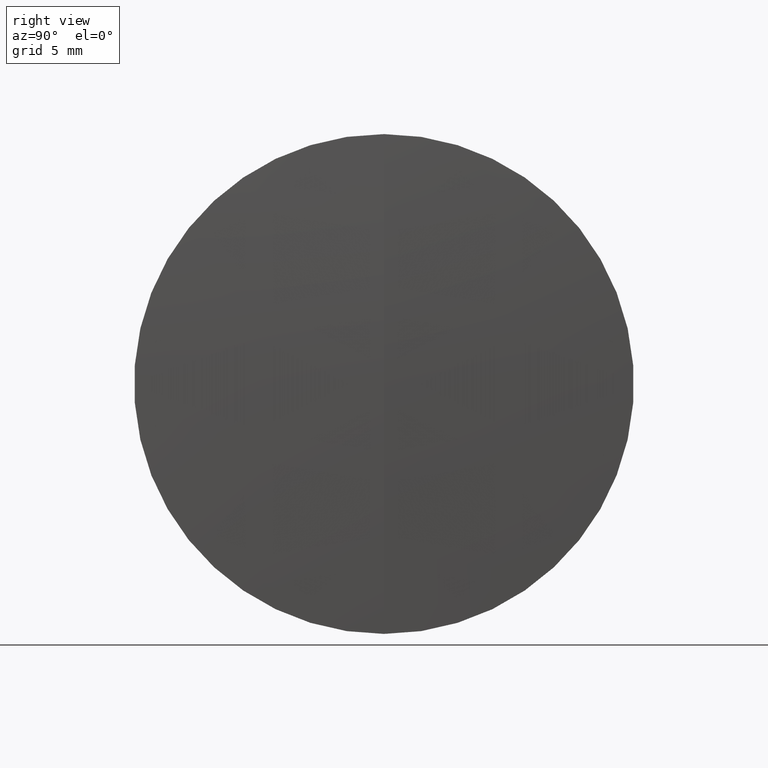
[diagram: clean part render]
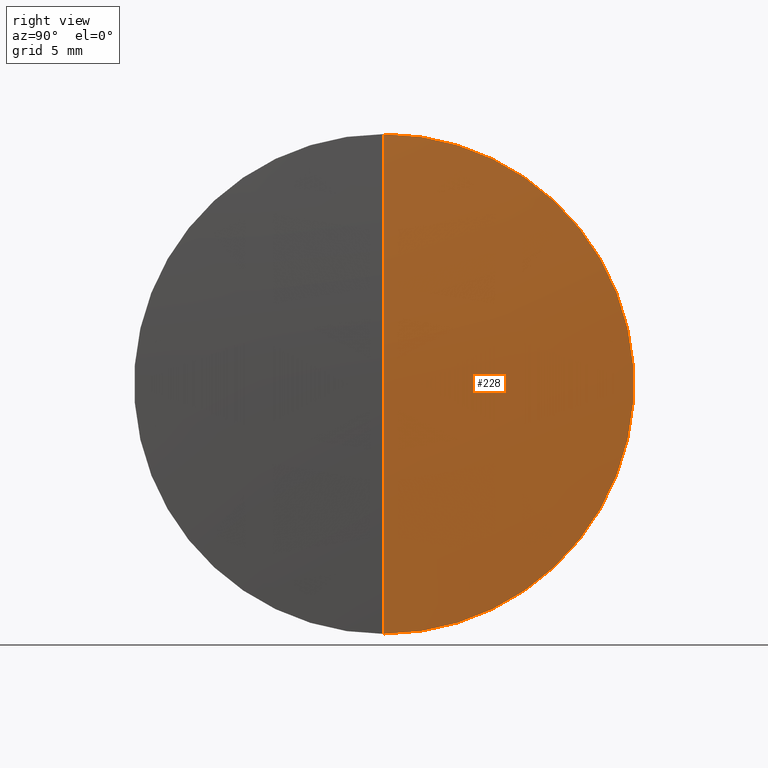
[diagram: same view with one face highlighted and labeled with its STEP entity id]
A machine part, right view. The second image highlights one B-rep face of the part: STEP entity #228.
In plain terms, the highlighted spherical surface has radius 272.9 mm.
Its self-contained STEP definition (entity closure, byte-faithful):
#15 = DIRECTION ( 'NONE',  ( 0.0000000000000000000, -1.000000000000000000, 0.0000000000000000000 ) ) ;
#20 = VERTEX_POINT ( 'NONE', #268 ) ;
#42 = DIRECTION ( 'NONE',  ( 0.0000000000000000000, 0.0000000000000000000, -1.000000000000000000 ) ) ;
#52 = DIRECTION ( 'NONE',  ( -0.0000000000000000000, 1.000000000000000000, 1.224646799147353200E-016 ) ) ;
#53 = VERTEX_POINT ( 'NONE', #66 ) ;
#66 = CARTESIAN_POINT ( 'NONE',  ( 347.1069652250823800, 0.0000000000000000000, 1.671030557436562800E-014 ) ) ;
#88 = CARTESIAN_POINT ( 'NONE',  ( 74.20696522508252700, 0.0000000000000000000, 0.0000000000000000000 ) ) ;
#97 = CARTESIAN_POINT ( 'NONE',  ( 74.20696522508252700, 0.0000000000000000000, 0.0000000000000000000 ) ) ;
#98 = CIRCLE ( 'NONE', #269, 14.99999999999997200 ) ;
#109 = SPHERICAL_SURFACE ( 'NONE', #114, 272.8999999999998600 ) ;
#111 = DIRECTION ( 'NONE',  ( -1.000000000000000000, -0.0000000000000000000, -0.0000000000000000000 ) ) ;
#114 = AXIS2_PLACEMENT_3D ( 'NONE', #88, #248, #217 ) ;
#116 = EDGE_CURVE ( 'NONE', #53, #148, #168, .T. ) ;
#130 = CARTESIAN_POINT ( 'NONE',  ( 346.6944144773369800, 0.0000000000000000000, 14.99999999999997200 ) ) ;
#134 = AXIS2_PLACEMENT_3D ( 'NONE', #245, #52, #216 ) ;
#142 = EDGE_LOOP ( 'NONE', ( #209, #250, #225 ) ) ;
#148 = VERTEX_POINT ( 'NONE', #130 ) ;
#168 = CIRCLE ( 'NONE', #325, 272.8999999999998600 ) ;
#175 = CIRCLE ( 'NONE', #134, 272.8999999999998600 ) ;
#209 = ORIENTED_EDGE ( 'NONE', *, *, #116, .F. ) ;
#210 = EDGE_CURVE ( 'NONE', #148, #20, #98, .T. ) ;
#216 = DIRECTION ( 'NONE',  ( 0.0000000000000000000, -1.224646799147353500E-016, 1.000000000000000000 ) ) ;
#217 = DIRECTION ( 'NONE',  ( 0.0000000000000000000, 0.0000000000000000000, 1.000000000000000000 ) ) ;
#225 = ORIENTED_EDGE ( 'NONE', *, *, #210, .F. ) ;
#228 = ADVANCED_FACE ( 'NONE', ( #319 ), #109, .T. ) ;
#233 = EDGE_CURVE ( 'NONE', #53, #20, #175, .T. ) ;
#245 = CARTESIAN_POINT ( 'NONE',  ( 74.20696522508252700, 0.0000000000000000000, 0.0000000000000000000 ) ) ;
#248 = DIRECTION ( 'NONE',  ( 0.0000000000000000000, 1.000000000000000000, 0.0000000000000000000 ) ) ;
#250 = ORIENTED_EDGE ( 'NONE', *, *, #233, .T. ) ;
#268 = CARTESIAN_POINT ( 'NONE',  ( 346.6944144773369800, 1.836970198721026400E-015, -14.99999999999997200 ) ) ;
#269 = AXIS2_PLACEMENT_3D ( 'NONE', #299, #111, #270 ) ;
#270 = DIRECTION ( 'NONE',  ( 0.0000000000000000000, 0.0000000000000000000, 1.000000000000000000 ) ) ;
#299 = CARTESIAN_POINT ( 'NONE',  ( 346.6944144773369800, 0.0000000000000000000, 0.0000000000000000000 ) ) ;
#319 = FACE_OUTER_BOUND ( 'NONE', #142, .T. ) ;
#325 = AXIS2_PLACEMENT_3D ( 'NONE', #97, #15, #42 ) ;